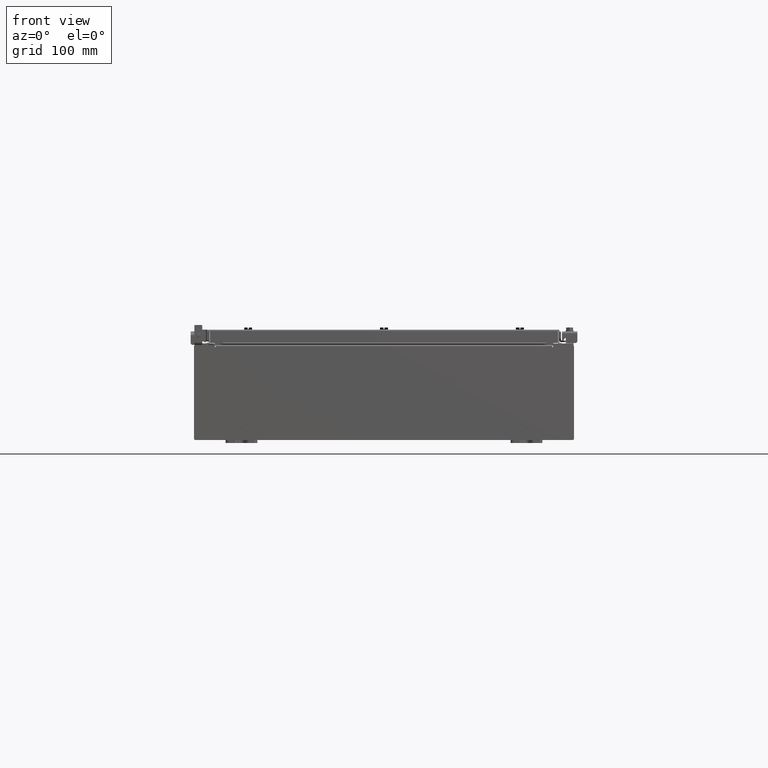
[diagram: clean part render]
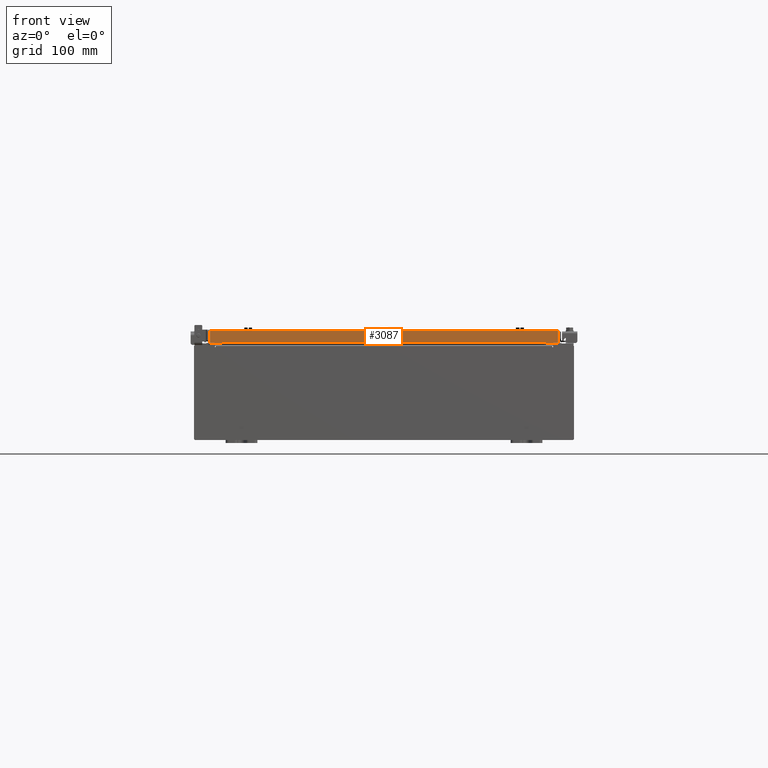
[diagram: same view with one face highlighted and labeled with its STEP entity id]
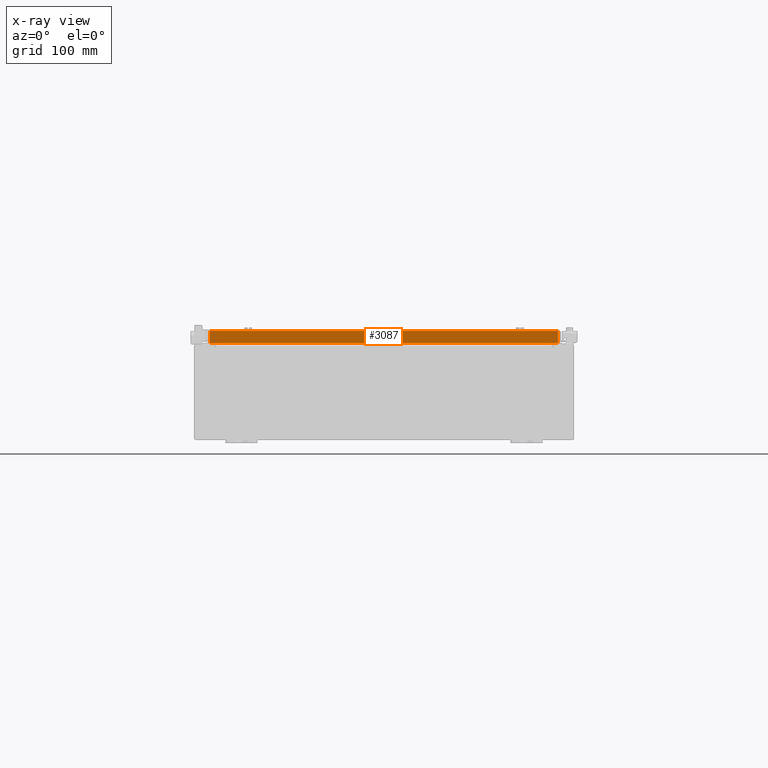
[diagram: x-ray of the same camera — body ghosted, the highlighted face saturated]
A machine part, front view. The second image highlights one B-rep face of the part: STEP entity #3087.
The next image is the same camera in x-ray: the body ghosted, the highlighted face saturated — about 0% of this face is hidden behind the body in this view.
In plain terms, the highlighted planar face has unit normal (-0, 1, -0).
Its self-contained STEP definition (entity closure, byte-faithful):
#108 = EDGE_CURVE ( 'NONE', #17035, #3550, #5721, .T. ) ;
#223 = VERTEX_POINT ( 'NONE', #2735 ) ;
#357 = CARTESIAN_POINT ( 'NONE',  ( 11.07799999999999600, -17.09400000000000100, -0.8499999999999996400 ) ) ;
#364 = EDGE_CURVE ( 'NONE', #14369, #13846, #1151, .T. ) ;
#573 = VECTOR ( 'NONE', #16590, 39.37007874015748100 ) ;
#1151 = LINE ( 'NONE', #357, #573 ) ;
#1190 = CARTESIAN_POINT ( 'NONE',  ( -10.98915786437626900, -17.09400000000000100, 4.844676449176231400E-014 ) ) ;
#1931 = FACE_OUTER_BOUND ( 'NONE', #21001, .T. ) ;
#2199 = DIRECTION ( 'NONE',  ( 0.0000000000000000000, 2.818880942772360500E-015, 1.000000000000000000 ) ) ;
#2636 = CARTESIAN_POINT ( 'NONE',  ( -10.23915786437627100, -17.09399999999999800, -0.8500000000000012000 ) ) ;
#2735 = CARTESIAN_POINT ( 'NONE',  ( -10.98915786437627200, -17.09400000000000100, -0.8499999999999969800 ) ) ;
#3004 = DIRECTION ( 'NONE',  ( 0.0000000000000000000, -2.818880942772360500E-015, -1.000000000000000000 ) ) ;
#3087 = ADVANCED_FACE ( 'NONE', ( #1931 ), #22201, .F. ) ;
#3550 = VERTEX_POINT ( 'NONE', #4980 ) ;
#4980 = CARTESIAN_POINT ( 'NONE',  ( 10.98915786437626500, -17.09400000000000100, -0.08769999999999897300 ) ) ;
#5011 = CARTESIAN_POINT ( 'NONE',  ( 10.23915786437626700, -17.09399999999999800, -0.8500000000000012000 ) ) ;
#5721 = LINE ( 'NONE', #6694, #14681 ) ;
#6510 = ORIENTED_EDGE ( 'NONE', *, *, #20553, .F. ) ;
#6694 = CARTESIAN_POINT ( 'NONE',  ( 11.07799999999999600, -17.09400000000000100, -0.08770000000000007000 ) ) ;
#7148 = DIRECTION ( 'NONE',  ( -1.000000000000000000, 4.379057701015053300E-047, 1.233005954894504400E-016 ) ) ;
#7699 = LINE ( 'NONE', #5011, #12472 ) ;
#8131 = CARTESIAN_POINT ( 'NONE',  ( 5.941356432273447100E-030, -17.09400000000000100, 4.844676449176231400E-014 ) ) ;
#8187 = LINE ( 'NONE', #1190, #15988 ) ;
#9427 = LINE ( 'NONE', #19735, #17777 ) ;
#10449 = EDGE_CURVE ( 'NONE', #3550, #14369, #9427, .T. ) ;
#10974 = ORIENTED_EDGE ( 'NONE', *, *, #108, .F. ) ;
#10979 = EDGE_CURVE ( 'NONE', #13846, #17180, #7699, .T. ) ;
#11332 = DIRECTION ( 'NONE',  ( 1.000000000000000000, 6.951393977153906300E-032, -9.864047639156036200E-017 ) ) ;
#12472 = VECTOR ( 'NONE', #15721, 39.37007874015748100 ) ;
#12612 = VECTOR ( 'NONE', #7148, 39.37007874015748100 ) ;
#13399 = AXIS2_PLACEMENT_3D ( 'NONE', #8131, #15080, #2199 ) ;
#13846 = VERTEX_POINT ( 'NONE', #21311 ) ;
#14124 = ORIENTED_EDGE ( 'NONE', *, *, #10449, .F. ) ;
#14369 = VERTEX_POINT ( 'NONE', #23019 ) ;
#14681 = VECTOR ( 'NONE', #11332, 39.37007874015748100 ) ;
#15080 = DIRECTION ( 'NONE',  ( -3.475696988576954900E-031, 1.000000000000000000, -2.818880942772360500E-015 ) ) ;
#15721 = DIRECTION ( 'NONE',  ( -1.000000000000000000, 0.0000000000000000000, 0.0000000000000000000 ) ) ;
#15988 = VECTOR ( 'NONE', #3004, 39.37007874015748100 ) ;
#16590 = DIRECTION ( 'NONE',  ( -1.000000000000000000, 4.379057701015053300E-047, 1.233005954894504400E-016 ) ) ;
#17035 = VERTEX_POINT ( 'NONE', #18407 ) ;
#17180 = VERTEX_POINT ( 'NONE', #2636 ) ;
#17345 = LINE ( 'NONE', #23179, #12612 ) ;
#17576 = ORIENTED_EDGE ( 'NONE', *, *, #364, .F. ) ;
#17777 = VECTOR ( 'NONE', #21527, 39.37007874015748100 ) ;
#18407 = CARTESIAN_POINT ( 'NONE',  ( -10.98915786437627200, -17.09400000000000100, -0.08769999999999787700 ) ) ;
#19288 = EDGE_CURVE ( 'NONE', #17035, #223, #8187, .T. ) ;
#19735 = CARTESIAN_POINT ( 'NONE',  ( 10.98915786437626700, -17.09400000000000100, -0.07469999999999978000 ) ) ;
#19946 = ORIENTED_EDGE ( 'NONE', *, *, #10979, .F. ) ;
#20553 = EDGE_CURVE ( 'NONE', #17180, #223, #17345, .T. ) ;
#21001 = EDGE_LOOP ( 'NONE', ( #10974, #23088, #6510, #19946, #17576, #14124 ) ) ;
#21311 = CARTESIAN_POINT ( 'NONE',  ( 10.23915786437626700, -17.09399999999999800, -0.8500000000000012000 ) ) ;
#21527 = DIRECTION ( 'NONE',  ( -0.0000000000000000000, -2.818880942772360500E-015, -1.000000000000000000 ) ) ;
#22201 = PLANE ( 'NONE',  #13399 ) ;
#23019 = CARTESIAN_POINT ( 'NONE',  ( 10.98915786437626700, -17.09400000000000100, -0.8499999999999996400 ) ) ;
#23088 = ORIENTED_EDGE ( 'NONE', *, *, #19288, .T. ) ;
#23179 = CARTESIAN_POINT ( 'NONE',  ( 11.07799999999999600, -17.09400000000000100, -0.8499999999999996400 ) ) ;